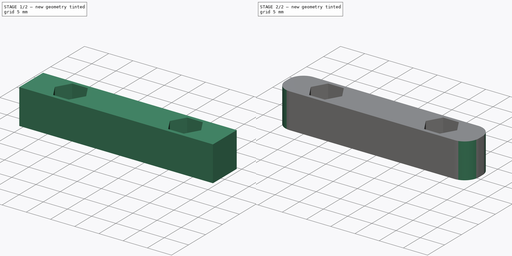
[diagram: build sequence overview — one tinted view per stage of 2, left to right]
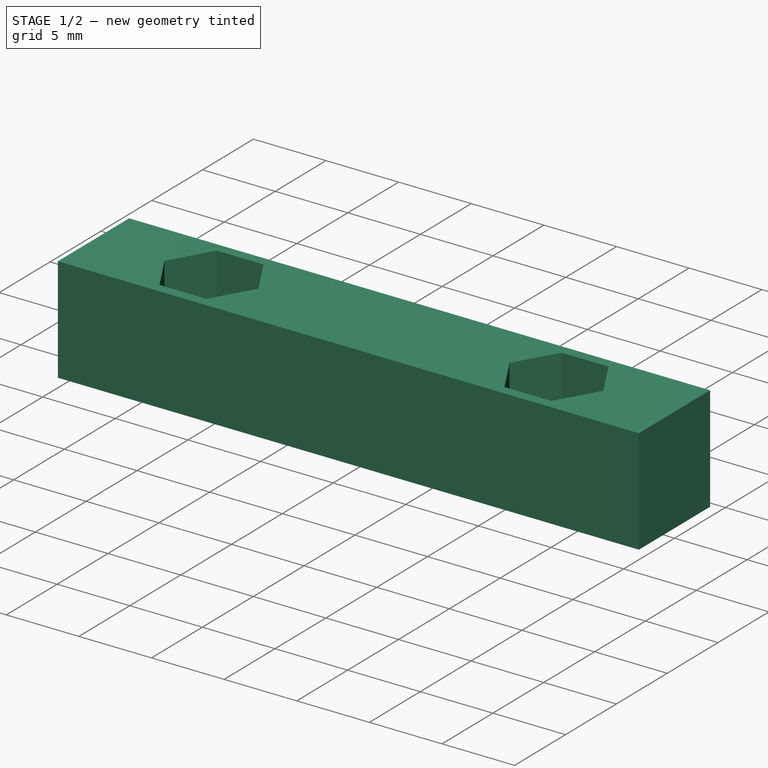
[diagram: stage 1 of 2 — iso view after this stage's code; geometry added in this stage tinted green]
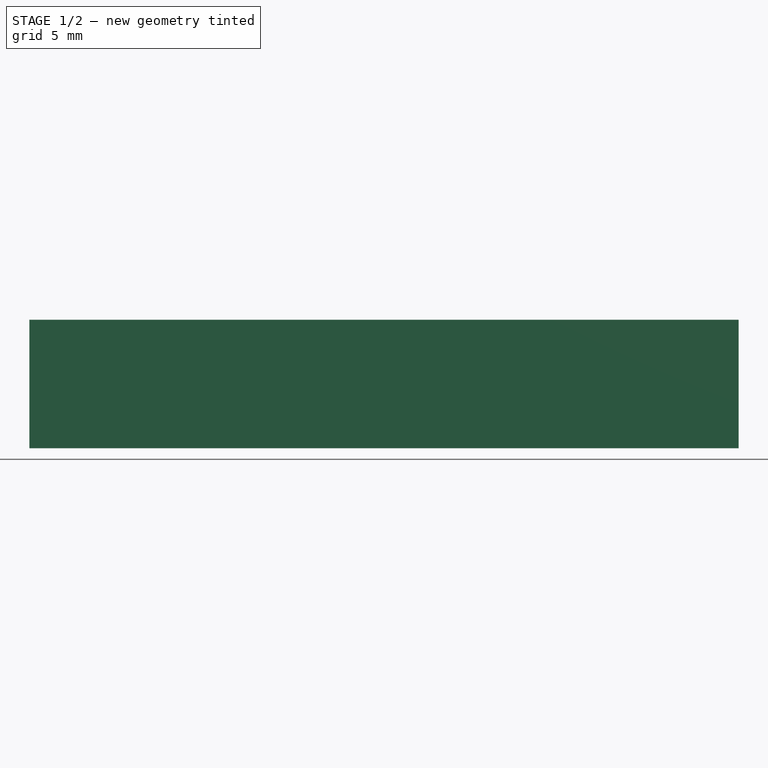
[diagram: stage 1 of 2 — front view after this stage's code; geometry added in this stage tinted green]
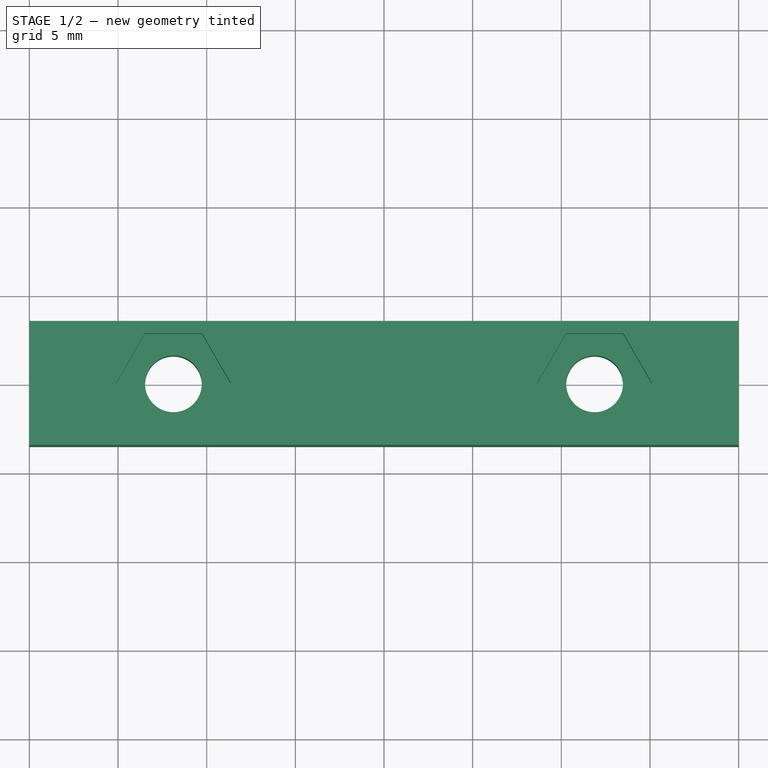
[diagram: stage 1 of 2 — top view after this stage's code; geometry added in this stage tinted green]
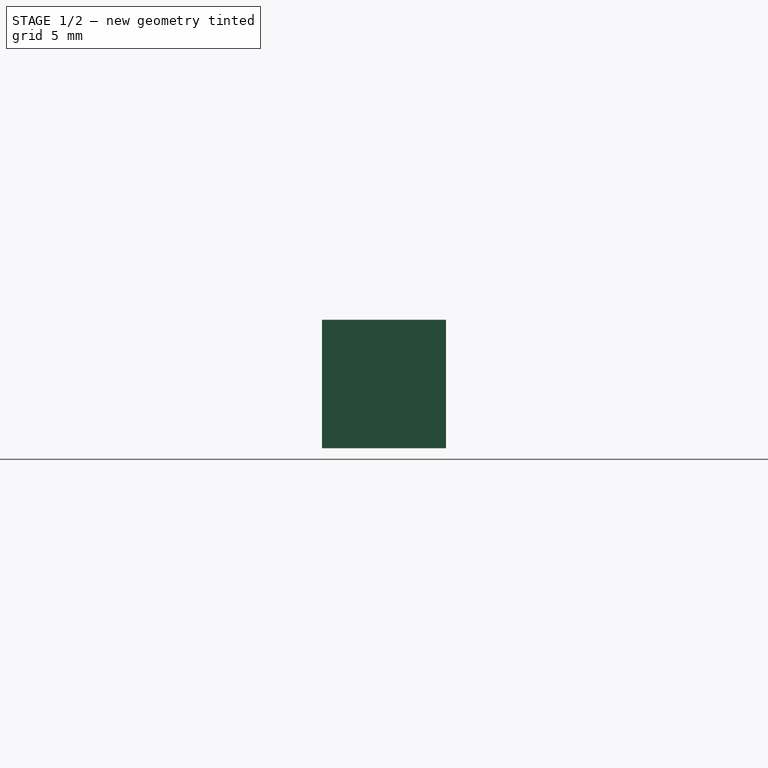
[diagram: stage 1 of 2 — right view after this stage's code; geometry added in this stage tinted green]
FCSTD DOCUMENT  (FreeCAD 0.20R29603 (Git))
Label: apoio-bracket-2375
License: All rights reserved
LicenseURL: http://en.wikipedia.org/wiki/All_rights_reserved
objects: Sketcher::SketchObject×2, PartDesign::Pad×1, PartDesign::Pocket×1, PartDesign::Fillet×1, PartDesign::Body×1
note: 9 computed .brp shape members not serialized (recipe doc carries the construction recipe); baked Part::Feature solids carry a one-line shape summary decoded from their .brp

FEATURE [Sketcher::SketchObject] Sketch
  FullyConstrained = true
  MapMode = 5
  Support = -> [XY_Plane]
  sketch-geometry (10):
    g0: LineSegment StartX=-20 StartY=3.5 StartZ=0 EndX=20 EndY=3.5 EndZ=0
    g1: LineSegment StartX=20 StartY=3.5 StartZ=0 EndX=20 EndY=-3.5 EndZ=0
    g2: LineSegment StartX=20 StartY=-3.5 StartZ=0 EndX=-20 EndY=-3.5 EndZ=0
    g3: LineSegment StartX=-20 StartY=-3.5 StartZ=0 EndX=-20 EndY=3.5 EndZ=0
    g4: LineSegment StartX=20 StartY=3.5 StartZ=0 EndX=-20 EndY=-3.5 EndZ=0
    g5: LineSegment StartX=-20 StartY=3.5 StartZ=0 EndX=20 EndY=-3.5 EndZ=0
    g6: LineSegment StartX=0 StartY=0 StartZ=0 EndX=-11.875 EndY=0 EndZ=0
    g7: LineSegment StartX=0 StartY=0 StartZ=0 EndX=11.875 EndY=0 EndZ=0
    g8: Circle CenterX=-11.875 CenterY=0 CenterZ=0 NormalX=0 NormalY=0 NormalZ=1 AngleXU=0 Radius=1.6
    g9: Circle CenterX=11.875 CenterY=0 CenterZ=0 NormalX=0 NormalY=0 NormalZ=1 AngleXU=0 Radius=1.6
  constraints (26):
    c: Coincident(g0,g1)
    c: Coincident(g1,g2)
    c: Coincident(g2,g3)
    c: Coincident(g3,g0)
    c: Horizontal(g0)
    c: Horizontal(g2)
    c: Vertical(g1)
    c: Vertical(g3)
    c: Coincident(g4,g0)
    c: Coincident(g4,g2)
    c: Coincident(g5,g0)
    c: Coincident(g5,g1)
    c: PointOnObject(g-1,g4)
    c: PointOnObject(g-1,g5)
    c: DistanceY(g3,g3) = 7
    c: Coincident(g6,g-1)
    c: Coincident(g7,g6)
    c: Coincident(g8,g6)
    c: Coincident(g9,g7)
    c: PointOnObject(g8,g-1)
    c: PointOnObject(g9,g-1)
    c: Equal(g9,g8)
    c: Diameter(g9) = 3.2
    c: Equal(g6,g7)
    c: DistanceX(g2,g2) = 40
    c: DistanceX(g8,g9) = 23.75
FEATURE [PartDesign::Pad] Pad
  Direction = (0,0,1)
  Length = 7.25
  Length2 = 10
  Profile = -> Sketch
  ReferenceAxis = -> Sketch [N_Axis]
  Type = 0
FEATURE [Sketcher::SketchObject] Sketch001
  ExternalGeometry = -> [Pad]
  FullyConstrained = true
  MapMode = 5
  Placement = pos=(0,0,7.25) rot=(0,0,1;0rad)
  Support = -> [Pad]
  sketch-geometry (14):
    g0: LineSegment StartX=-8.64184 StartY=0 StartZ=0 EndX=-10.2584 EndY=2.8 EndZ=0
    g1: LineSegment StartX=-10.2584 StartY=2.8 StartZ=0 EndX=-13.4916 EndY=2.8 EndZ=0
    g2: LineSegment StartX=-13.4916 StartY=2.8 StartZ=0 EndX=-15.1082 EndY=0 EndZ=0
    g3: LineSegment StartX=-15.1082 StartY=0 StartZ=0 EndX=-13.4916 EndY=-2.8 EndZ=0
    g4: LineSegment StartX=-13.4916 StartY=-2.8 StartZ=0 EndX=-10.2584 EndY=-2.8 EndZ=0
    g5: LineSegment StartX=-10.2584 StartY=-2.8 StartZ=0 EndX=-8.64184 EndY=0 EndZ=0
    g6: Circle CenterX=-11.875 CenterY=0 CenterZ=0 NormalX=0 NormalY=0 NormalZ=1 AngleXU=0 Radius=3.23316
    g7: LineSegment StartX=8.64184 StartY=0 StartZ=0 EndX=10.2584 EndY=-2.8 EndZ=0
    g8: LineSegment StartX=10.2584 StartY=-2.8 StartZ=0 EndX=13.4916 EndY=-2.8 EndZ=0
    g9: LineSegment StartX=13.4916 StartY=-2.8 StartZ=0 EndX=15.1082 EndY=0 EndZ=0
    g10: LineSegment StartX=15.1082 StartY=0 StartZ=0 EndX=13.4916 EndY=2.8 EndZ=0
    g11: LineSegment StartX=13.4916 StartY=2.8 StartZ=0 EndX=10.2584 EndY=2.8 EndZ=0
    g12: LineSegment StartX=10.2584 StartY=2.8 StartZ=0 EndX=8.64184 EndY=0 EndZ=0
    g13: Circle CenterX=11.875 CenterY=0 CenterZ=0 NormalX=0 NormalY=0 NormalZ=1 AngleXU=0 Radius=3.23316
  constraints (32):
    c: Coincident(g0,g1)
    c: Coincident(g1,g2)
    c: Coincident(g2,g3)
    c: Coincident(g3,g4)
    c: Coincident(g4,g5)
    c: Coincident(g5,g0)
    c: Equal(g0, g1-g5) x5
    c: PointOnObject(g0,g6)
    c: PointOnObject(g1,g6)
    c: PointOnObject(g2,g6)
    c: PointOnObject(g3,g6)
    c: PointOnObject(g4,g6)
    c: PointOnObject(g5,g6)
    c: Coincident(g6,g-3)
    c: PointOnObject(g5,g-1)
    c: Coincident(g7,g8)
    c: Coincident(g8,g9)
    c: Coincident(g9,g10)
    c: Coincident(g10,g11)
    c: Coincident(g11,g12)
    c: Coincident(g12,g7)
    c: Equal(g7, g8-g12) x5
    c: PointOnObject(g7,g13)
    c: PointOnObject(g8,g13)
    c: PointOnObject(g9,g13)
    c: PointOnObject(g10,g13)
    c: PointOnObject(g11,g13)
    c: PointOnObject(g12,g13)
    c: Coincident(g13,g-4)
    c: PointOnObject(g12,g-1)
    c: Equal(g13,g6)
    c: DistanceY(g3,g1) = 5.6
FEATURE [PartDesign::Pocket] Pocket
  BaseFeature = -> Pad
  Direction = (0,0,-1)
  Length = 3
  Length2 = 5
  Profile = -> Sketch001
  ReferenceAxis = -> Sketch001 [N_Axis]
  Type = 0
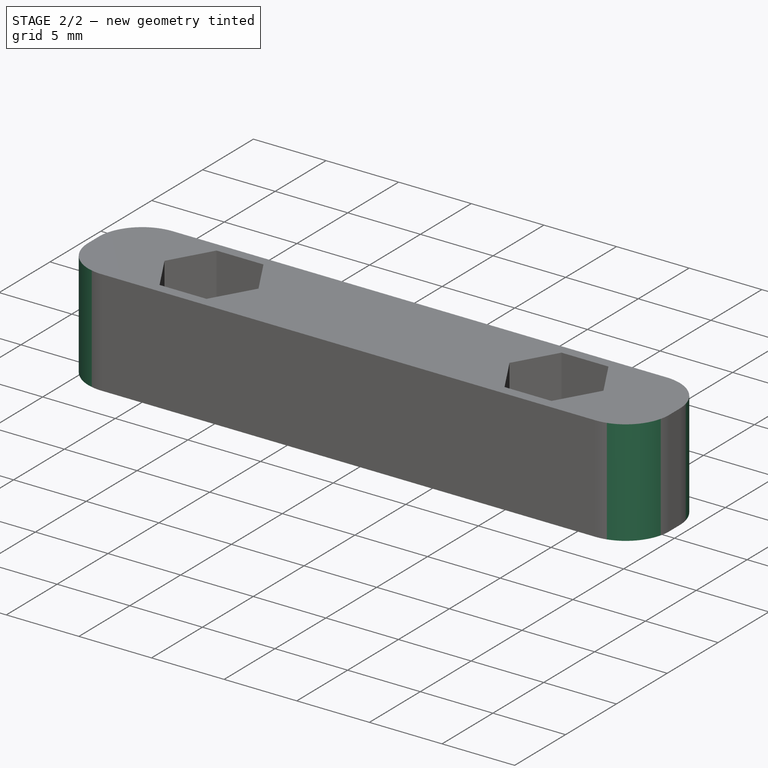
[diagram: stage 2 of 2 — iso view after this stage's code; geometry added in this stage tinted green]
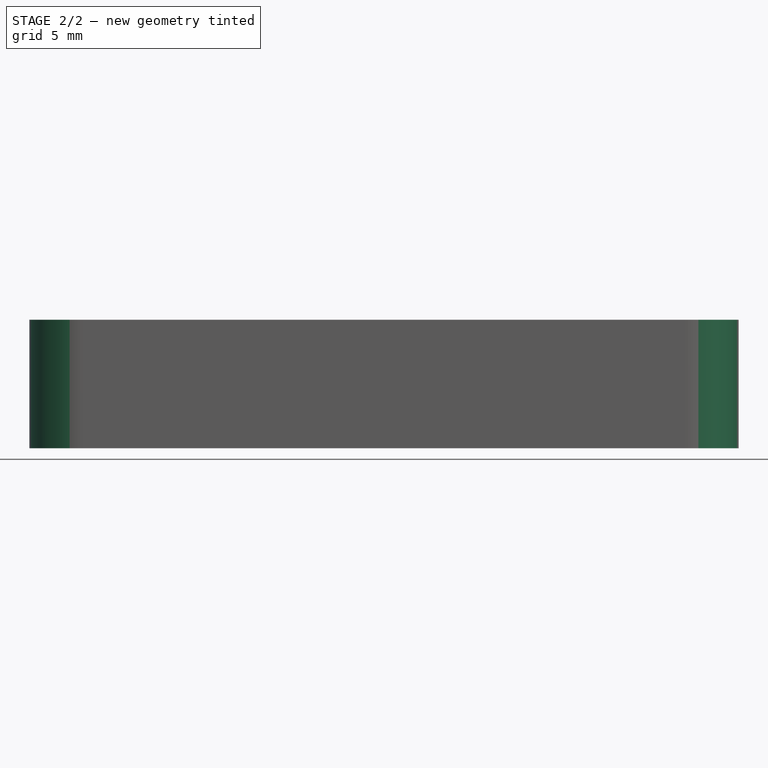
[diagram: stage 2 of 2 — front view after this stage's code; geometry added in this stage tinted green]
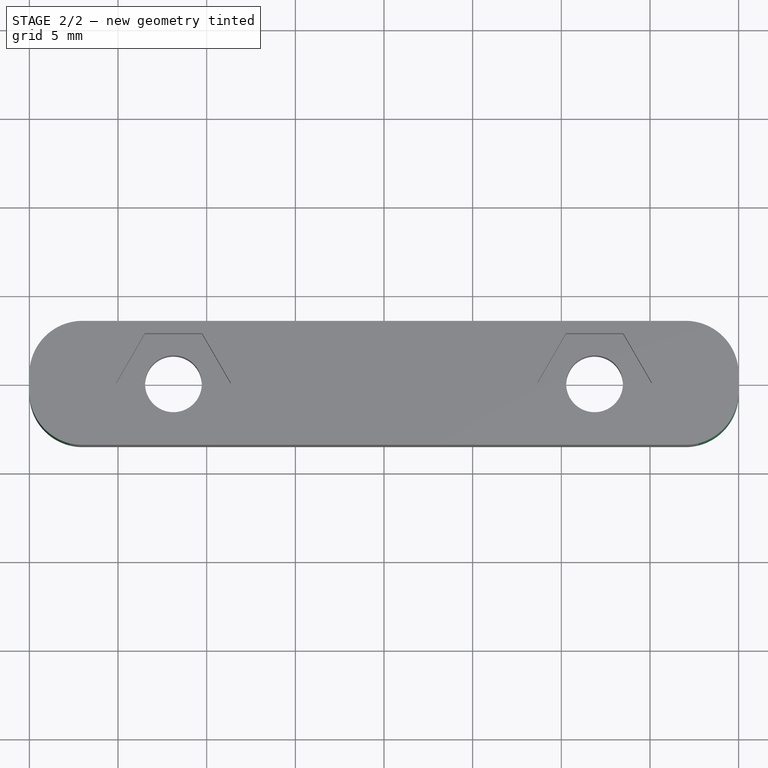
[diagram: stage 2 of 2 — top view after this stage's code; geometry added in this stage tinted green]
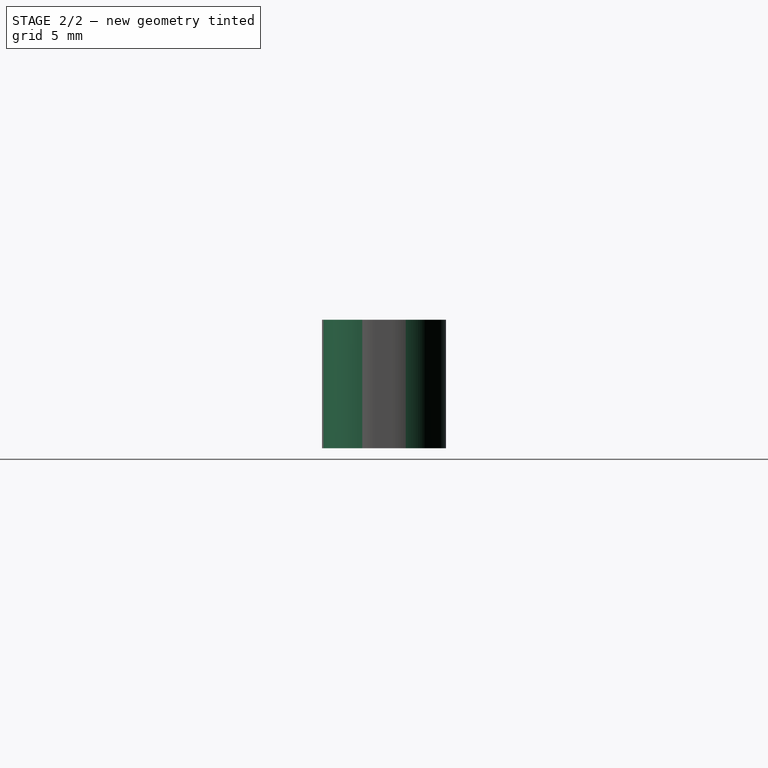
[diagram: stage 2 of 2 — right view after this stage's code; geometry added in this stage tinted green]
FEATURE [PartDesign::Fillet] Fillet
  Base = -> Pocket [Edge8,Edge2,Edge1,Edge5]
  BaseFeature = -> Pocket
  Radius = 3
  SupportTransform = false
  UseAllEdges = false
FEATURE [PartDesign::Body] Body
  Group = -> [Sketch,Pad,Sketch001,Pocket,Fillet]
  Origin = -> Origin
  Tip = -> Fillet
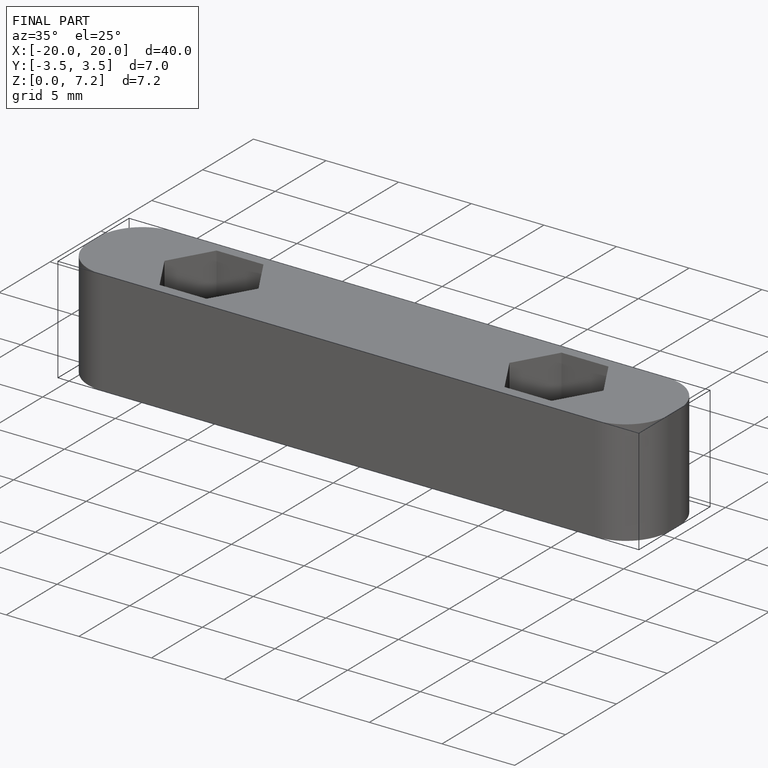
[diagram: finished part — iso view with bounding-box wireframe]
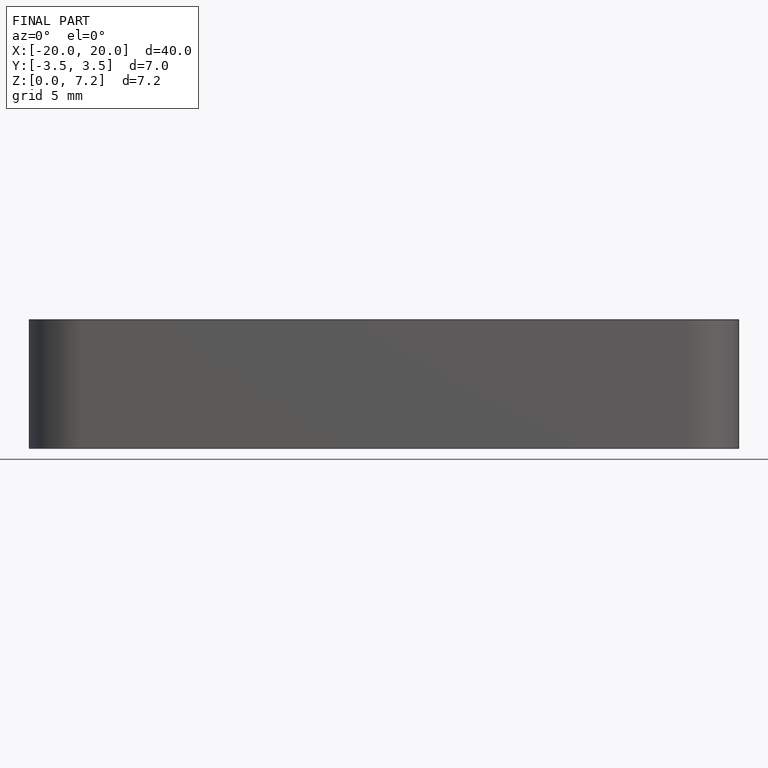
[diagram: finished part — front view with bounding-box wireframe]
